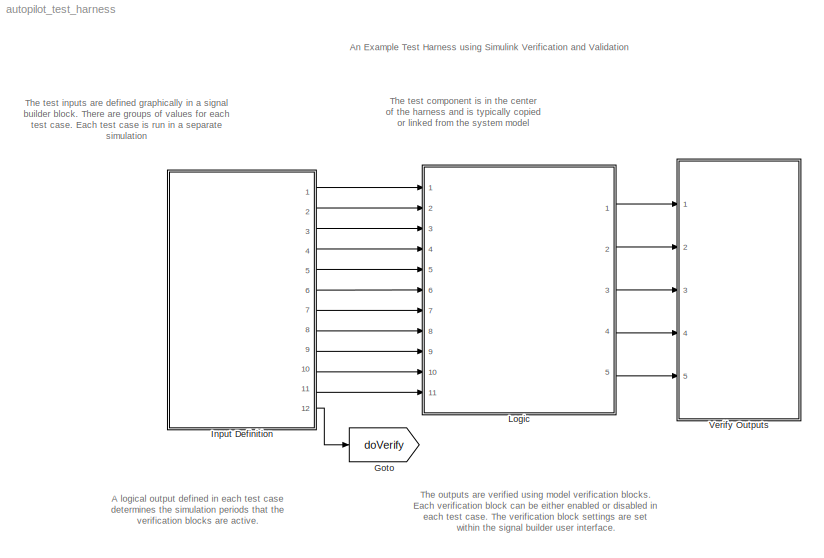
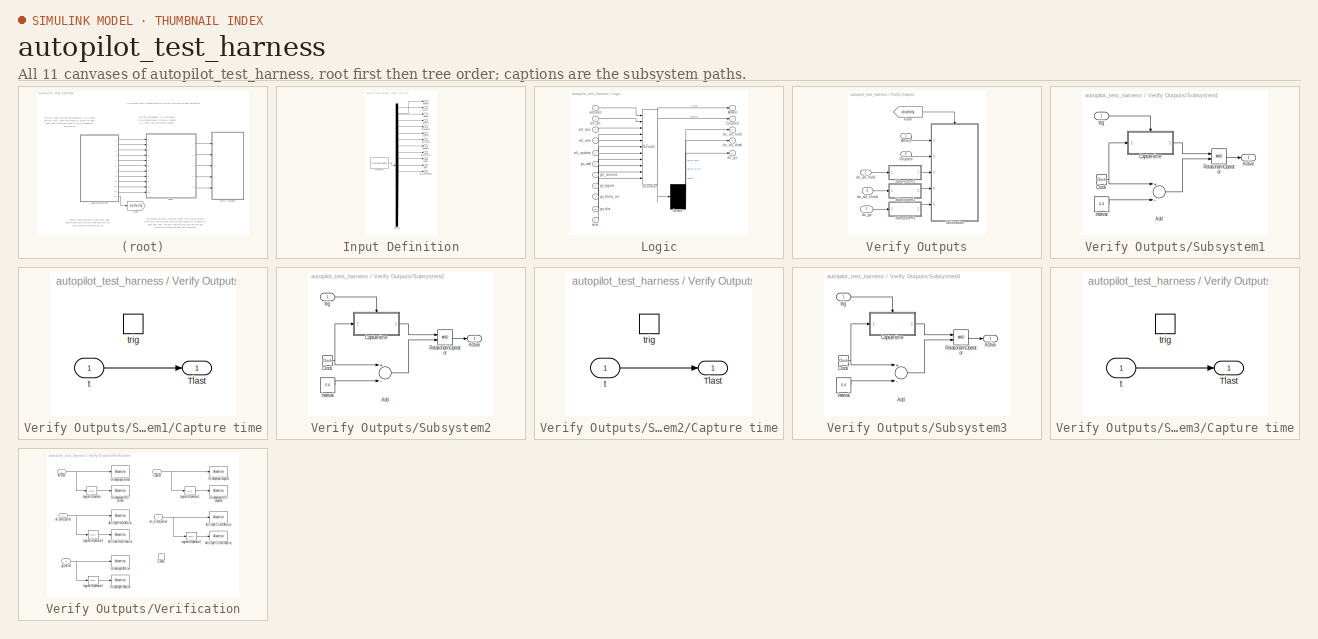
[diagram: thumbnail index - all 11 canvases of the model, root first then tree order]
MODEL autopilot_test_harness
KIND model
BLOCK [Goto] Goto
  DialogController = Simulink.DDGSource
  GotoTag = doVerify
  TagVisibility = global
BLOCK [SubSystem] Input Definition
  ClipboardFcn = sigbuilder_block('clipboard');
  CloseFcn = sigbuilder_block('close');
  CopyFcn = sigbuilder_block('copy');
  DeleteFcn = sigbuilder_block('delete');
  LoadFcn = sigbuilder_block('load');
  MaskDescription = Sigbuilder GUI
  MaskDisplay = plot(0,0,100,100,[10,10,40,40,10],[80,20,20,80,80],[40,10],[50,50], [40,27,10],[65,72,56],[40,25,25,10],[28,28,43,43]);
  MaskIconFrame = on
  MaskIconOpaque = off
  MaskIconRotate = port
  MaskIconUnits = autoscale
  MaskInitialization = if ~strcmp(get_param(bdroot(gcb),'SimulationStatus'),'stopped') tuvar = sigbuilder_block('maskInit'); end
  MaskType = Sigbuilder block
  MinAlgLoopOccurrences = off
  ModelCloseFcn = sigbuilder_block('modelClose');
  NameChangeFcn = sigbuilder_block('namechange');
  OpenFcn = sigbuilder_block('open',[21 81 593.25 412.5 ]);
  Ports = [0, 12]
  PreSaveFcn = sigbuilder_block('preSave');
  PropExecContextAcrossSSBoundary = on
  RTWSystemCode = Auto
  StartFcn = sigbuilder_block('start');
  StopFcn = sigbuilder_block('stop');
  Tag = STV Subsys
  TreatAsAtomicUnit = off
BLOCK [Demux] Input Definition/Demux
  Outputs = 12
  Ports = [1, 12]
  Tag = STV Demux
BLOCK [Outport] Input Definition/Do Verification
  BusOutputAsStruct = off
  IconDisplay = Port number
  Port = 12
  Tag = STV Outport
BLOCK [FromWorkspace] Input Definition/FromWs
  SampleTime = 0
  SigBuilderData = DataTag0
  Tag = STV FromWs
  VariableName = tuvar
  VnvData = DataTag1
BLOCK [Outport] Input Definition/altCtrl
  BusOutputAsStruct = off
  IconDisplay = Port number
  Port = 2
  Tag = STV Outport
BLOCK [Outport] Input Definition/altDes
  BusOutputAsStruct = off
  IconDisplay = Port number
  Port = 3
  Tag = STV Outport
BLOCK [Outport] Input Definition/altRate
  BusOutputAsStruct = off
  IconDisplay = Port number
  Port = 4
  Tag = STV Outport
BLOCK [Outport] Input Definition/altUpdate
  BusOutputAsStruct = off
  IconDisplay = Port number
  Port = 5
  Tag = STV Outport
BLOCK [Outport] Input Definition/altitude
  BusOutputAsStruct = off
  IconDisplay = Port number
  Tag = STV Outport
BLOCK [Outport] Input Definition/goAround
  BusOutputAsStruct = off
  IconDisplay = Port number
  Port = 7
  Tag = STV Outport
BLOCK [Outport] Input Definition/gsCmd
  BusOutputAsStruct = off
  IconDisplay = Port number
  Port = 6
  Tag = STV Outport
BLOCK [Outport] Input Definition/gsDist
  BusOutputAsStruct = off
  IconDisplay = Port number
  Port = 10
  Tag = STV Outport
BLOCK [Outport] Input Definition/gsSignal
  BusOutputAsStruct = off
  IconDisplay = Port number
  Port = 8
  Tag = STV Outport
BLOCK [Outport] Input Definition/gsThetaErr
  BusOutputAsStruct = off
  IconDisplay = Port number
  Port = 9
  Tag = STV Outport
BLOCK [Outport] Input Definition/wow
  BusOutputAsStruct = off
  IconDisplay = Port number
  Port = 11
  Tag = STV Outport
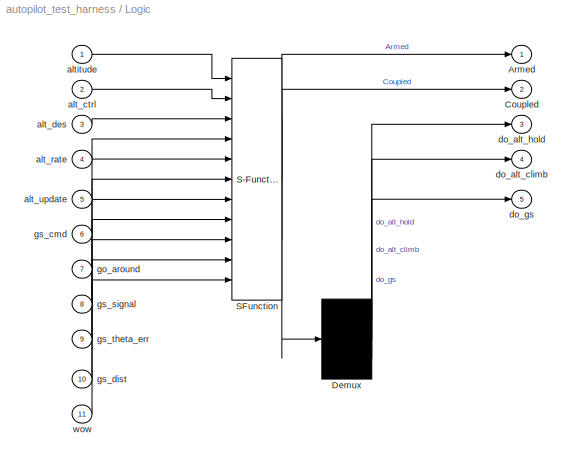
BLOCK [SubSystem] Logic
  MaskDescription = Stateflow diagram
  MaskDisplay = plot(sf('Private','sfblk','xIcon'),sf('Private','sfblk','yIcon'));text(0.5,0,sf('Private', 'sfblk', 'tIcon'),'HorizontalAl','Center','VerticalAl','Bottom');
  MaskIconFrame = off
  MaskIconOpaque = off
  MaskIconRotate = none
  MaskIconUnits = autoscale
  MaskSelfModifiable = on
  MaskType = Stateflow
  MinAlgLoopOccurrences = off
  Ports = [11, 5]
  PropExecContextAcrossSSBoundary = on
  RTWSystemCode = Auto
  TreatAsAtomicUnit = off
BLOCK [Demux] Logic/ Demux 
  Outputs = 3
  Ports = [1, 3]
BLOCK [S-Function] Logic/ SFunction 
  FunctionName = sf_sfun
  PortCounts = [11 3]
  Ports = [11, 3]
  Tag = Stateflow S-Function autopilot_test_harness 1
BLOCK [Outport] Logic/Armed
  BusOutputAsStruct = off
  IconDisplay = Port number
BLOCK [Outport] Logic/Coupled
  BusOutputAsStruct = off
  IconDisplay = Port number
  Port = 2
BLOCK [Inport] Logic/alt_ctrl
  IconDisplay = Port number
  LatchInput = off
  Port = 2
BLOCK [Inport] Logic/alt_des
  IconDisplay = Port number
  LatchInput = off
  Port = 3
BLOCK [Inport] Logic/alt_rate
  IconDisplay = Port number
  LatchInput = off
  Port = 4
BLOCK [Inport] Logic/alt_update
  IconDisplay = Port number
  LatchInput = off
  Port = 5
BLOCK [Inport] Logic/altitude
  IconDisplay = Port number
  LatchInput = off
  Port = 1
BLOCK [Outport] Logic/do_alt_climb
  BusOutputAsStruct = off
  IconDisplay = Port number
  Port = 4
BLOCK [Outport] Logic/do_alt_hold
  BusOutputAsStruct = off
  IconDisplay = Port number
  Port = 3
BLOCK [Outport] Logic/do_gs
  BusOutputAsStruct = off
  IconDisplay = Port number
  Port = 5
BLOCK [Inport] Logic/go_around
  IconDisplay = Port number
  LatchInput = off
  Port = 7
BLOCK [Inport] Logic/gs_cmd
  IconDisplay = Port number
  LatchInput = off
  Port = 6
BLOCK [Inport] Logic/gs_dist
  IconDisplay = Port number
  LatchInput = off
  Port = 10
BLOCK [Inport] Logic/gs_signal
  IconDisplay = Port number
  LatchInput = off
  Port = 8
BLOCK [Inport] Logic/gs_theta_err
  IconDisplay = Port number
  LatchInput = off
  Port = 9
BLOCK [Inport] Logic/wow
  IconDisplay = Port number
  LatchInput = off
  Port = 11
BLOCK [SubSystem] Verify Outputs
  MinAlgLoopOccurrences = off
  Ports = [5]
  PropExecContextAcrossSSBoundary = on
  RTWSystemCode = Auto
  TreatAsAtomicUnit = off
BLOCK [Inport] Verify Outputs/Armed
  IconDisplay = Port number
  LatchInput = off
  Port = 1
BLOCK [Inport] Verify Outputs/Coupled
  IconDisplay = Port number
  LatchInput = off
  Port = 2
BLOCK [From] Verify Outputs/From
  CloseFcn = tagdialog Close
  DialogController = Simulink.DDGSource
  GotoTag = doVerify
BLOCK [SubSystem] Verify Outputs/Subsystem1
  MaskDisplay = disp('Is Active')
  MaskIconFrame = on
  MaskIconOpaque = on
  MaskIconRotate = none
  MaskIconUnits = autoscale
  MinAlgLoopOccurrences = off
  Ports = [1, 1]
  PropExecContextAcrossSSBoundary = on
  RTWSystemCode = Auto
  TreatAsAtomicUnit = off
BLOCK [Outport] Verify Outputs/Subsystem1/Active
  BusOutputAsStruct = off
  IconDisplay = Port number
BLOCK [Sum] Verify Outputs/Subsystem1/Add
  InputSameDT = off
  Inputs = +-
  OutDataTypeMode = Inherit via internal rule
  OutScaling = 2^-10
  Ports = [2, 1]
  SaturateOnIntegerOverflow = off
BLOCK [SubSystem] Verify Outputs/Subsystem1/Capture time
  MinAlgLoopOccurrences = off
  Ports = [1, 1, 0, 1]
  PropExecContextAcrossSSBoundary = on
  RTWSystemCode = Auto
  TreatAsAtomicUnit = on
BLOCK [Outport] Verify Outputs/Subsystem1/Capture time/Tlast
  BusOutputAsStruct = off
  IconDisplay = Port number
  InitialOutput = -999
BLOCK [Inport] Verify Outputs/Subsystem1/Capture time/t
  IconDisplay = Port number
  LatchInput = off
  Port = 1
BLOCK [TriggerPort] Verify Outputs/Subsystem1/Capture time/trig
  Ports = []
  TriggerType = function-call
  ZeroCross = off
BLOCK [Clock] Verify Outputs/Subsystem1/Clock
  Decimation = 10
BLOCK [Constant] Verify Outputs/Subsystem1/Interval
  Value = 0.4
BLOCK [RelationalOperator] Verify Outputs/Subsystem1/Relational\nOperator
  InputSameDT = off
  LogicOutDataTypeMode = Boolean
BLOCK [Inport] Verify Outputs/Subsystem1/trig
  IconDisplay = Port number
  LatchInput = off
  Port = 1
BLOCK [SubSystem] Verify Outputs/Subsystem2
  MaskDisplay = disp('Is Active')
  MaskIconFrame = on
  MaskIconOpaque = on
  MaskIconRotate = none
  MaskIconUnits = autoscale
  MinAlgLoopOccurrences = off
  Ports = [1, 1]
  PropExecContextAcrossSSBoundary = on
  RTWSystemCode = Auto
  TreatAsAtomicUnit = off
BLOCK [Outport] Verify Outputs/Subsystem2/Active
  BusOutputAsStruct = off
  IconDisplay = Port number
BLOCK [Sum] Verify Outputs/Subsystem2/Add
  InputSameDT = off
  Inputs = +-
  OutDataTypeMode = Inherit via internal rule
  OutScaling = 2^-10
  Ports = [2, 1]
  SaturateOnIntegerOverflow = off
BLOCK [SubSystem] Verify Outputs/Subsystem2/Capture time
  MinAlgLoopOccurrences = off
  Ports = [1, 1, 0, 1]
  PropExecContextAcrossSSBoundary = on
  RTWSystemCode = Auto
  TreatAsAtomicUnit = on
BLOCK [Outport] Verify Outputs/Subsystem2/Capture time/Tlast
  BusOutputAsStruct = off
  IconDisplay = Port number
  InitialOutput = -999
BLOCK [Inport] Verify Outputs/Subsystem2/Capture time/t
  IconDisplay = Port number
  LatchInput = off
  Port = 1
BLOCK [TriggerPort] Verify Outputs/Subsystem2/Capture time/trig
  Ports = []
  TriggerType = function-call
  ZeroCross = off
BLOCK [Clock] Verify Outputs/Subsystem2/Clock
  Decimation = 10
BLOCK [Constant] Verify Outputs/Subsystem2/Interval
  Value = 0.4
BLOCK [RelationalOperator] Verify Outputs/Subsystem2/Relational\nOperator
  InputSameDT = off
  LogicOutDataTypeMode = Boolean
BLOCK [Inport] Verify Outputs/Subsystem2/trig
  IconDisplay = Port number
  LatchInput = off
  Port = 1
BLOCK [SubSystem] Verify Outputs/Subsystem3
  MaskDisplay = disp('Is Active')
  MaskIconFrame = on
  MaskIconOpaque = on
  MaskIconRotate = none
  MaskIconUnits = autoscale
  MinAlgLoopOccurrences = off
  Ports = [1, 1]
  PropExecContextAcrossSSBoundary = on
  RTWSystemCode = Auto
  TreatAsAtomicUnit = off
BLOCK [Outport] Verify Outputs/Subsystem3/Active
  BusOutputAsStruct = off
  IconDisplay = Port number
BLOCK [Sum] Verify Outputs/Subsystem3/Add
  InputSameDT = off
  Inputs = +-
  OutDataTypeMode = Inherit via internal rule
  OutScaling = 2^-10
  Ports = [2, 1]
  SaturateOnIntegerOverflow = off
BLOCK [SubSystem] Verify Outputs/Subsystem3/Capture time
  MinAlgLoopOccurrences = off
  Ports = [1, 1, 0, 1]
  PropExecContextAcrossSSBoundary = on
  RTWSystemCode = Auto
  TreatAsAtomicUnit = on
BLOCK [Outport] Verify Outputs/Subsystem3/Capture time/Tlast
  BusOutputAsStruct = off
  IconDisplay = Port number
  InitialOutput = -999
BLOCK [Inport] Verify Outputs/Subsystem3/Capture time/t
  IconDisplay = Port number
  LatchInput = off
  Port = 1
BLOCK [TriggerPort] Verify Outputs/Subsystem3/Capture time/trig
  Ports = []
  TriggerType = function-call
  ZeroCross = off
BLOCK [Clock] Verify Outputs/Subsystem3/Clock
  Decimation = 10
BLOCK [Constant] Verify Outputs/Subsystem3/Interval
  Value = 0.4
BLOCK [RelationalOperator] Verify Outputs/Subsystem3/Relational\nOperator
  InputSameDT = off
  LogicOutDataTypeMode = Boolean
BLOCK [Inport] Verify Outputs/Subsystem3/trig
  IconDisplay = Port number
  LatchInput = off
  Port = 1
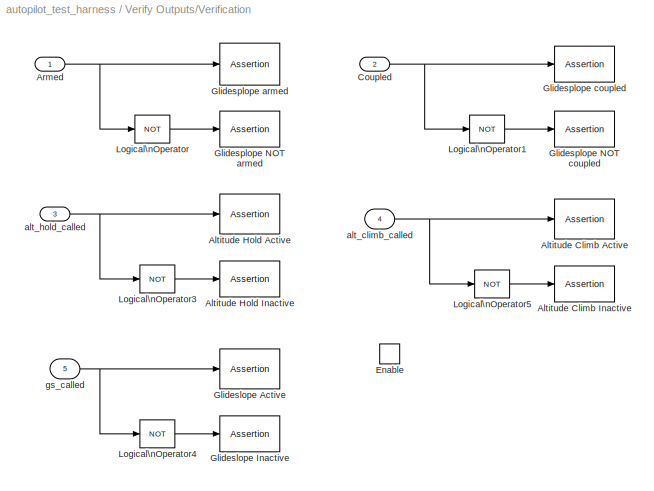
BLOCK [SubSystem] Verify Outputs/Verification
  MinAlgLoopOccurrences = off
  Ports = [5, 0, 1]
  PropExecContextAcrossSSBoundary = on
  RTWSystemCode = Auto
  TreatAsAtomicUnit = off
BLOCK [Assertion] Verify Outputs/Verification/Altitude Climb Active
  Enabled = off
  StopWhenAssertionFail = off
BLOCK [Assertion] Verify Outputs/Verification/Altitude Climb Inactive
  Enabled = off
BLOCK [Assertion] Verify Outputs/Verification/Altitude Hold Active
  Enabled = off
BLOCK [Assertion] Verify Outputs/Verification/Altitude Hold Inactive
  Enabled = off
BLOCK [Inport] Verify Outputs/Verification/Armed
  IconDisplay = Port number
  LatchInput = off
  Port = 1
BLOCK [Inport] Verify Outputs/Verification/Coupled
  IconDisplay = Port number
  LatchInput = off
  Port = 2
BLOCK [EnablePort] Verify Outputs/Verification/Enable
  Ports = []
BLOCK [Assertion] Verify Outputs/Verification/Glideslope Active
  Enabled = off
BLOCK [Assertion] Verify Outputs/Verification/Glideslope Inactive
  Enabled = off
BLOCK [Assertion] Verify Outputs/Verification/Glidesplope NOT armed
  Enabled = off
BLOCK [Assertion] Verify Outputs/Verification/Glidesplope NOT coupled
  Enabled = off
BLOCK [Assertion] Verify Outputs/Verification/Glidesplope armed
  Enabled = off
BLOCK [Assertion] Verify Outputs/Verification/Glidesplope coupled
  Enabled = off
BLOCK [Logic] Verify Outputs/Verification/Logical\nOperator
  AllPortsSameDT = off
  Operator = NOT
  OutDataTypeMode = Boolean
  Ports = [1, 1]
BLOCK [Logic] Verify Outputs/Verification/Logical\nOperator1
  AllPortsSameDT = off
  Operator = NOT
  OutDataTypeMode = Boolean
  Ports = [1, 1]
BLOCK [Logic] Verify Outputs/Verification/Logical\nOperator3
  AllPortsSameDT = off
  Operator = NOT
  OutDataTypeMode = Boolean
  Ports = [1, 1]
BLOCK [Logic] Verify Outputs/Verification/Logical\nOperator4
  AllPortsSameDT = off
  Operator = NOT
  OutDataTypeMode = Boolean
  Ports = [1, 1]
BLOCK [Logic] Verify Outputs/Verification/Logical\nOperator5
  AllPortsSameDT = off
  Operator = NOT
  OutDataTypeMode = Boolean
  Ports = [1, 1]
BLOCK [Inport] Verify Outputs/Verification/alt_climb_called
  IconDisplay = Port number
  LatchInput = off
  Port = 4
BLOCK [Inport] Verify Outputs/Verification/alt_hold_called
  IconDisplay = Port number
  LatchInput = off
  Port = 3
BLOCK [Inport] Verify Outputs/Verification/gs_called
  IconDisplay = Port number
  LatchInput = off
  Port = 5
BLOCK [Inport] Verify Outputs/do_alt_climb
  IconDisplay = Port number
  LatchInput = off
  Port = 4
BLOCK [Inport] Verify Outputs/do_alt_hold
  IconDisplay = Port number
  LatchInput = off
  Port = 3
BLOCK [Inport] Verify Outputs/do_gs
  IconDisplay = Port number
  LatchInput = off
  Port = 5
ANNOTATION (root): A logical output defined in each test case\ndetermines the simulation periods that the\nverification blocks are active.
ANNOTATION (root): An Example Test Harness using Simulink Verification and Validation
ANNOTATION (root): The outputs are verified using model verification blocks. \nEach verification block can be either enabled or disabled in \neach test case. The verification block settings are set \nwithin the signal builder user interface.
ANNOTATION (root): The test component is in the center\nof the harness and is typically copied\nor linked from the system model
ANNOTATION (root): The test inputs are defined graphically in a signal \nbuilder block. There are groups of values for each \ntest case. Each test case is run in a separate \nsimulation
LINE Input Definition/Demux:1 -> Input Definition/altitude:1
LINE Input Definition/Demux:10 -> Input Definition/gsDist:1
LINE Input Definition/Demux:11 -> Input Definition/wow:1
LINE Input Definition/Demux:12 -> Input Definition/Do Verification:1
LINE Input Definition/Demux:2 -> Input Definition/altCtrl:1
LINE Input Definition/Demux:3 -> Input Definition/altDes:1
LINE Input Definition/Demux:4 -> Input Definition/altRate:1
LINE Input Definition/Demux:5 -> Input Definition/altUpdate:1
LINE Input Definition/Demux:6 -> Input Definition/gsCmd:1
LINE Input Definition/Demux:7 -> Input Definition/goAround:1
LINE Input Definition/Demux:8 -> Input Definition/gsSignal:1
LINE Input Definition/Demux:9 -> Input Definition/gsThetaErr:1
LINE Input Definition/FromWs:1 -> Input Definition/Demux:1
LINE Input Definition:1 -> Logic:1
LINE Input Definition:10 -> Logic:10
LINE Input Definition:11 -> Logic:11
LINE Input Definition:12 -> Goto:1
LINE Input Definition:2 -> Logic:2
LINE Input Definition:3 -> Logic:3
LINE Input Definition:4 -> Logic:4
LINE Input Definition:5 -> Logic:5
LINE Input Definition:6 -> Logic:6
LINE Input Definition:7 -> Logic:7
LINE Input Definition:8 -> Logic:8
LINE Input Definition:9 -> Logic:9
LINE Logic/ Demux :1 -> Logic/do_alt_hold:1
LINE Logic/ Demux :2 -> Logic/do_alt_climb:1
LINE Logic/ Demux :3 -> Logic/do_gs:1
LINE Logic/ SFunction :1 -> Logic/ Demux :1
LINE Logic/ SFunction :2 -> Logic/Armed:1
LINE Logic/ SFunction :3 -> Logic/Coupled:1
LINE Logic/alt_ctrl:1 -> Logic/ SFunction :2
LINE Logic/alt_des:1 -> Logic/ SFunction :3
LINE Logic/alt_rate:1 -> Logic/ SFunction :4
LINE Logic/alt_update:1 -> Logic/ SFunction :5
LINE Logic/altitude:1 -> Logic/ SFunction :1
LINE Logic/go_around:1 -> Logic/ SFunction :7
LINE Logic/gs_cmd:1 -> Logic/ SFunction :6
LINE Logic/gs_dist:1 -> Logic/ SFunction :10
LINE Logic/gs_signal:1 -> Logic/ SFunction :8
LINE Logic/gs_theta_err:1 -> Logic/ SFunction :9
LINE Logic/wow:1 -> Logic/ SFunction :11
LINE Logic:1 -> Verify Outputs:1
LINE Logic:2 -> Verify Outputs:2
LINE Logic:3 -> Verify Outputs:3
LINE Logic:4 -> Verify Outputs:4
LINE Logic:5 -> Verify Outputs:5
LINE Verify Outputs/Armed:1 -> Verify Outputs/Verification:1
LINE Verify Outputs/Coupled:1 -> Verify Outputs/Verification:2
LINE Verify Outputs/From:1 -> Verify Outputs/Verification:enable
LINE Verify Outputs/Subsystem1/Add:1 -> Verify Outputs/Subsystem1/Relational\nOperator:2
LINE Verify Outputs/Subsystem1/Capture time/t:1 -> Verify Outputs/Subsystem1/Capture time/Tlast:1
LINE Verify Outputs/Subsystem1/Capture time:1 -> Verify Outputs/Subsystem1/Relational\nOperator:1
NET Verify Outputs/Subsystem1/Clock:1 -> Verify Outputs/Subsystem1/Add:1, Verify Outputs/Subsystem1/Capture time:1
LINE Verify Outputs/Subsystem1/Interval:1 -> Verify Outputs/Subsystem1/Add:2
LINE Verify Outputs/Subsystem1/Relational\nOperator:1 -> Verify Outputs/Subsystem1/Active:1
LINE Verify Outputs/Subsystem1/trig:1 -> Verify Outputs/Subsystem1/Capture time:trigger
LINE Verify Outputs/Subsystem1:1 -> Verify Outputs/Verification:4
LINE Verify Outputs/Subsystem2/Add:1 -> Verify Outputs/Subsystem2/Relational\nOperator:2
LINE Verify Outputs/Subsystem2/Capture time/t:1 -> Verify Outputs/Subsystem2/Capture time/Tlast:1
LINE Verify Outputs/Subsystem2/Capture time:1 -> Verify Outputs/Subsystem2/Relational\nOperator:1
NET Verify Outputs/Subsystem2/Clock:1 -> Verify Outputs/Subsystem2/Add:1, Verify Outputs/Subsystem2/Capture time:1
LINE Verify Outputs/Subsystem2/Interval:1 -> Verify Outputs/Subsystem2/Add:2
LINE Verify Outputs/Subsystem2/Relational\nOperator:1 -> Verify Outputs/Subsystem2/Active:1
LINE Verify Outputs/Subsystem2/trig:1 -> Verify Outputs/Subsystem2/Capture time:trigger
LINE Verify Outputs/Subsystem2:1 -> Verify Outputs/Verification:3
LINE Verify Outputs/Subsystem3/Add:1 -> Verify Outputs/Subsystem3/Relational\nOperator:2
LINE Verify Outputs/Subsystem3/Capture time/t:1 -> Verify Outputs/Subsystem3/Capture time/Tlast:1
LINE Verify Outputs/Subsystem3/Capture time:1 -> Verify Outputs/Subsystem3/Relational\nOperator:1
NET Verify Outputs/Subsystem3/Clock:1 -> Verify Outputs/Subsystem3/Add:1, Verify Outputs/Subsystem3/Capture time:1
LINE Verify Outputs/Subsystem3/Interval:1 -> Verify Outputs/Subsystem3/Add:2
LINE Verify Outputs/Subsystem3/Relational\nOperator:1 -> Verify Outputs/Subsystem3/Active:1
LINE Verify Outputs/Subsystem3/trig:1 -> Verify Outputs/Subsystem3/Capture time:trigger
LINE Verify Outputs/Subsystem3:1 -> Verify Outputs/Verification:5
NET Verify Outputs/Verification/Armed:1 -> Verify Outputs/Verification/Glidesplope armed:1, Verify Outputs/Verification/Logical\nOperator:1
NET Verify Outputs/Verification/Coupled:1 -> Verify Outputs/Verification/Glidesplope coupled:1, Verify Outputs/Verification/Logical\nOperator1:1
LINE Verify Outputs/Verification/Logical\nOperator1:1 -> Verify Outputs/Verification/Glidesplope NOT coupled:1
LINE Verify Outputs/Verification/Logical\nOperator3:1 -> Verify Outputs/Verification/Altitude Hold Inactive:1
LINE Verify Outputs/Verification/Logical\nOperator4:1 -> Verify Outputs/Verification/Glideslope Inactive:1
LINE Verify Outputs/Verification/Logical\nOperator5:1 -> Verify Outputs/Verification/Altitude Climb Inactive:1
LINE Verify Outputs/Verification/Logical\nOperator:1 -> Verify Outputs/Verification/Glidesplope NOT armed:1
NET Verify Outputs/Verification/alt_climb_called:1 -> Verify Outputs/Verification/Altitude Climb Active:1, Verify Outputs/Verification/Logical\nOperator5:1
NET Verify Outputs/Verification/alt_hold_called:1 -> Verify Outputs/Verification/Altitude Hold Active:1, Verify Outputs/Verification/Logical\nOperator3:1
NET Verify Outputs/Verification/gs_called:1 -> Verify Outputs/Verification/Glideslope Active:1, Verify Outputs/Verification/Logical\nOperator4:1
LINE Verify Outputs/do_alt_climb:1 -> Verify Outputs/Subsystem1:1
LINE Verify Outputs/do_alt_hold:1 -> Verify Outputs/Subsystem2:1
LINE Verify Outputs/do_gs:1 -> Verify Outputs/Subsystem3:1
note: NET lines group one-source signal fan-out (src -> all destinations, sorted); 1:1 wires keep LINE
CHART Logic states=15 transitions=14
  STATE_LABEL 'Disabled'
  STATE_LABEL 'out = alt_capture()'
  STATE_LABEL 'GS'
  STATE_LABEL 'Off'
  STATE_LABEL 'Active'
  STATE_LABEL 'Armed'
  STATE_LABEL 'Coupled /du: do_gs;'
  STATE_LABEL 'Around'
  STATE_LABEL 'out = gs_coupled()'
  STATE_LABEL 'Active'
  STATE_LABEL 'Glideslope'
  STATE_LABEL 'Norm'
  STATE_LABEL 'Altitude'
  STATE_LABEL 'Climb_Rate\\ndu: do_alt_climb;'
  STATE_LABEL 'Hold\\ndu: do_alt_hold;'
